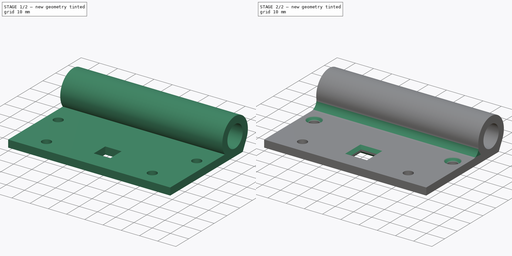
[diagram: build sequence overview — one tinted view per stage of 2, left to right]
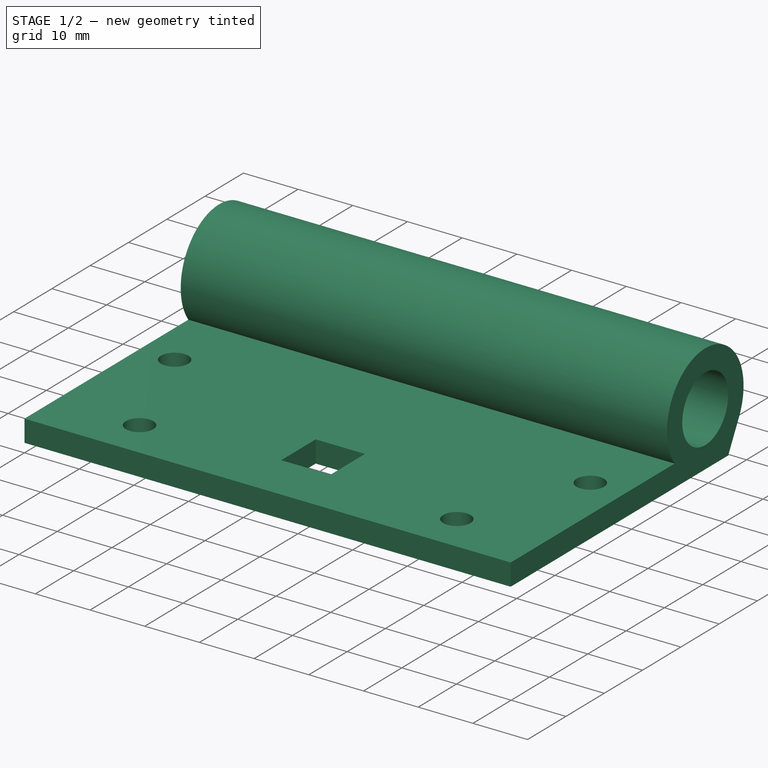
[diagram: stage 1 of 2 — iso view after this stage's code; geometry added in this stage tinted green]
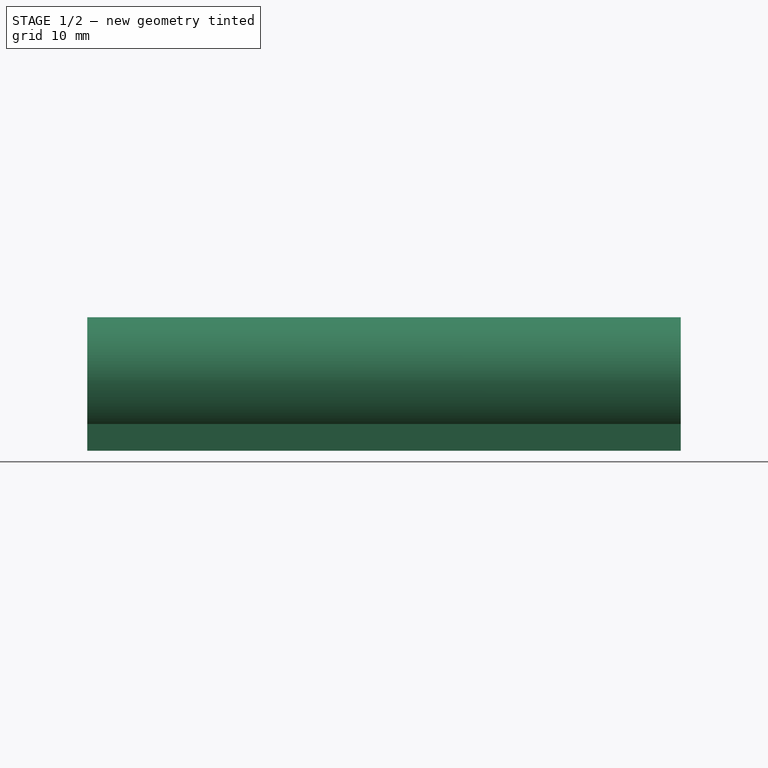
[diagram: stage 1 of 2 — front view after this stage's code; geometry added in this stage tinted green]
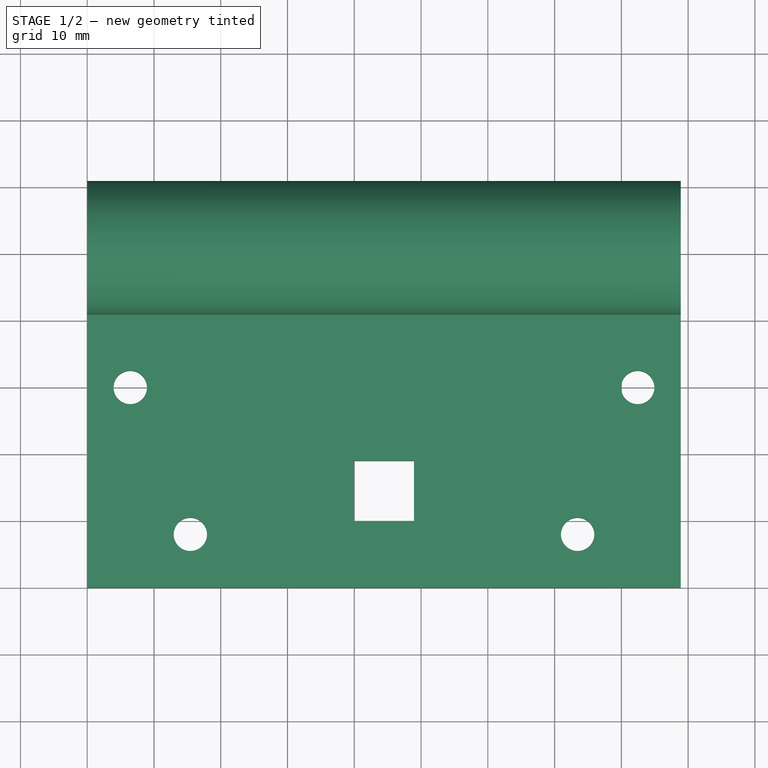
[diagram: stage 1 of 2 — top view after this stage's code; geometry added in this stage tinted green]
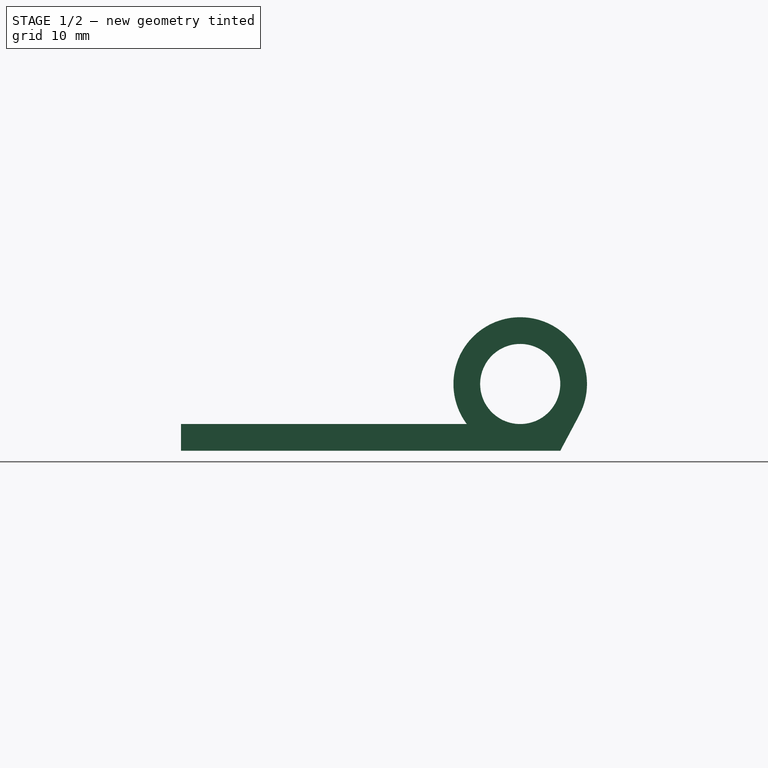
[diagram: stage 1 of 2 — right view after this stage's code; geometry added in this stage tinted green]
FCSTD DOCUMENT  (FreeCAD 0.17R11141 (Git))
Label: roller-holder
License: All rights reserved
LicenseURL: http://en.wikipedia.org/wiki/All_rights_reserved
objects: Sketcher::SketchObject×2, PartDesign::Pad×2, PartDesign::Fillet×1, PartDesign::Chamfer×1, PartDesign::Body×1
note: 9 computed .brp shape members not serialized (recipe doc carries the construction recipe); baked Part::Feature solids carry a one-line shape summary decoded from their .brp

FEATURE [Sketcher::SketchObject] Sketch
  MapMode = 5
  Support = -> [XY_Plane]
  sketch-geometry (25):
    g0: LineSegment StartX=0 StartY=0 StartZ=0 EndX=88.9 EndY=0 EndZ=0
    g1: LineSegment StartX=88.9 StartY=0 StartZ=0 EndX=88.9 EndY=50.8 EndZ=0
    g2: LineSegment StartX=88.9 StartY=50.8 StartZ=0 EndX=0 EndY=50.8 EndZ=0
    g3: LineSegment StartX=0 StartY=50.8 StartZ=0 EndX=0 EndY=0 EndZ=0
    g4: LineSegment [constr] StartX=0 StartY=0 StartZ=0 EndX=17.95 EndY=50.8 EndZ=0
    g5: LineSegment [constr] StartX=17.95 StartY=50.8 StartZ=0 EndX=17.95 EndY=0 EndZ=0
    g6: LineSegment [constr] StartX=17.95 StartY=0 StartZ=0 EndX=70.95 EndY=50.8 EndZ=0
    g7: LineSegment [constr] StartX=70.95 StartY=50.8 StartZ=0 EndX=70.95 EndY=0 EndZ=0
    g8: LineSegment [constr] StartX=70.95 StartY=0 StartZ=0 EndX=88.9 EndY=50.8 EndZ=0
    g9: LineSegment StartX=39.95 StartY=10 StartZ=0 EndX=48.95 EndY=10 EndZ=0
    g10: LineSegment StartX=48.95 StartY=10 StartZ=0 EndX=48.95 EndY=19 EndZ=0
    g11: LineSegment StartX=48.95 StartY=19 StartZ=0 EndX=39.95 EndY=19 EndZ=0
    g12: LineSegment StartX=39.95 StartY=19 StartZ=0 EndX=39.95 EndY=10 EndZ=0
    g13: LineSegment [constr] StartX=17.95 StartY=0 StartZ=0 EndX=39.95 EndY=10 EndZ=0
    g14: LineSegment [constr] StartX=48.95 StartY=10 StartZ=0 EndX=70.95 EndY=0 EndZ=0
    g15: LineSegment [constr] StartX=0 StartY=0 StartZ=0 EndX=15.45 EndY=8 EndZ=0
    g16: LineSegment [constr] StartX=15.45 StartY=8 StartZ=0 EndX=73.45 EndY=8 EndZ=0
    g17: LineSegment [constr] StartX=73.45 StartY=8 StartZ=0 EndX=88.9 EndY=0 EndZ=0
    g18: Circle CenterX=15.45 CenterY=8 CenterZ=0 NormalX=0 NormalY=0 NormalZ=1 Radius=2.5
    g19: Circle CenterX=73.45 CenterY=8 CenterZ=0 NormalX=0 NormalY=0 NormalZ=1 Radius=2.5
    g20: LineSegment [constr] StartX=0 StartY=0 StartZ=0 EndX=6.45 EndY=30 EndZ=0
    g21: LineSegment [constr] StartX=6.45 StartY=30 StartZ=0 EndX=82.45 EndY=30 EndZ=0
    g22: LineSegment [constr] StartX=82.45 StartY=30 StartZ=0 EndX=88.9 EndY=0 EndZ=0
    g23: Circle CenterX=6.45 CenterY=30 CenterZ=0 NormalX=0 NormalY=0 NormalZ=1 Radius=2.5
    g24: Circle CenterX=82.45 CenterY=30 CenterZ=0 NormalX=0 NormalY=0 NormalZ=1 Radius=2.5
  constraints (65):
    c: Coincident(g0,g1)
    c: Coincident(g1,g2)
    c: Coincident(g2,g3)
    c: Coincident(g3,g0)
    c: Horizontal(g0)
    c: Horizontal(g2)
    c: Vertical(g1)
    c: Vertical(g3)
    c: Coincident(g0,g-1)
    c: DistanceX(g0,g0) = 88.9
    c: DistanceY(g3,g3) = 50.8
    c: Coincident(g-1,g4)
    c: PointOnObject(g4,g2)
    c: Coincident(g4,g5)
    c: PointOnObject(g5,g0)
    c: Vertical(g5)
    c: Coincident(g5,g6)
    c: PointOnObject(g6,g2)
    c: Coincident(g6,g7)
    c: PointOnObject(g7,g0)
    c: Vertical(g7)
    c: Coincident(g7,g8)
    c: Coincident(g8,g1)
    c: Equal(g8,g4)
    c: DistanceX(g4,g6) = 53
    c: Coincident(g9,g10)
    c: Coincident(g10,g11)
    c: Coincident(g11,g12)
    c: Coincident(g12,g9)
    c: Horizontal(g9)
    c: Horizontal(g11)
    c: Vertical(g10)
    c: Vertical(g12)
    c: Coincident(g5,g13)
    c: Coincident(g13,g9)
    c: Coincident(g9,g14)
    c: Coincident(g14,g7)
    c: Coincident(g-1,g15)
    c: Coincident(g15,g16)
    c: Horizontal(g16)
    c: Coincident(g16,g17)
    c: Coincident(g17,g0)
    c: Equal(g17,g15)
    c: Equal(g13,g14)
    c: Equal(g9,g10)
    c: Coincident(g18,g15)
    c: Coincident(g19,g16)
    c: Tangent(g19,g7)
    c: DistanceY(g5,g15) = 8
    c: Equal(g18,g19)
    c: Radius(g19) = 2.5
    c: DistanceX(g11,g11) = 9
    c: DistanceY(g5,g9) = 10
    c: Coincident(g-1,g20)
    c: Coincident(g20,g21)
    c: Horizontal(g21)
    c: Coincident(g21,g22)
    c: Coincident(g22,g0)
    c: Equal(g22,g20)
    c: Coincident(g23,g20)
    c: Coincident(g24,g21)
    c: Equal(g23,g24)
    c: Radius(g23) = 2.5
    c: DistanceX(g21,g21) = 76
    c: DistanceY(g20) = 30
FEATURE [PartDesign::Pad] Pad
  Length = 4
  Length2 = 100
  Profile = -> Sketch
  Type = 0
FEATURE [Sketcher::SketchObject] Sketch001
  ExternalGeometry = -> [Pad]
  MapMode = 5
  Placement = pos=(0,0,0) rot=(0.57735,-0.57735,-0.57735;2.0944rad)
  Support = -> [Pad]
  sketch-geometry (5):
    g0: Circle CenterX=-50.8 CenterY=10 CenterZ=0 NormalX=0 NormalY=0 NormalZ=1 Radius=6
    g1: Circle [constr] CenterX=-50.8 CenterY=10 CenterZ=0 NormalX=0 NormalY=0 NormalZ=1 Radius=10
    g2: LineSegment StartX=-50.8 StartY=0 StartZ=0 EndX=-56.8 EndY=0 EndZ=0
    g3: LineSegment StartX=-56.8 StartY=0 StartZ=0 EndX=-59.6235 EndY=5.29412 EndZ=0
    g4: ArcOfCircle CenterX=-50.8 CenterY=10 CenterZ=0 NormalX=0 NormalY=0 NormalZ=1 Radius=10 StartAngle=4.71239 EndAngle=9.91473
  constraints (14):
    c: Radius(g0) = 6
    c: DistanceY(g0) = 10
    c: Coincident(g1,g0)
    c: Tangent(g1,g-1)
    c: PointOnObject(g-3,g1)
    c: Coincident(g-3,g2)
    c: PointOnObject(g2,g-1)
    c: Coincident(g2,g3)
    c: PointOnObject(g3,g1)
    c: Tangent(g3,g1)
    c: DistanceX(g2,g2) = 6
    c: Coincident(g4,g0)
    c: Coincident(g4,g3)
    c: Coincident(g4,g2)
FEATURE [PartDesign::Pad] Pad001
  BaseFeature = -> Pad
  Length = 10
  Length2 = 100
  Profile = -> Sketch001
  Reversed = true
  Type = 3
  UpToFace = -> Pad [Face2]
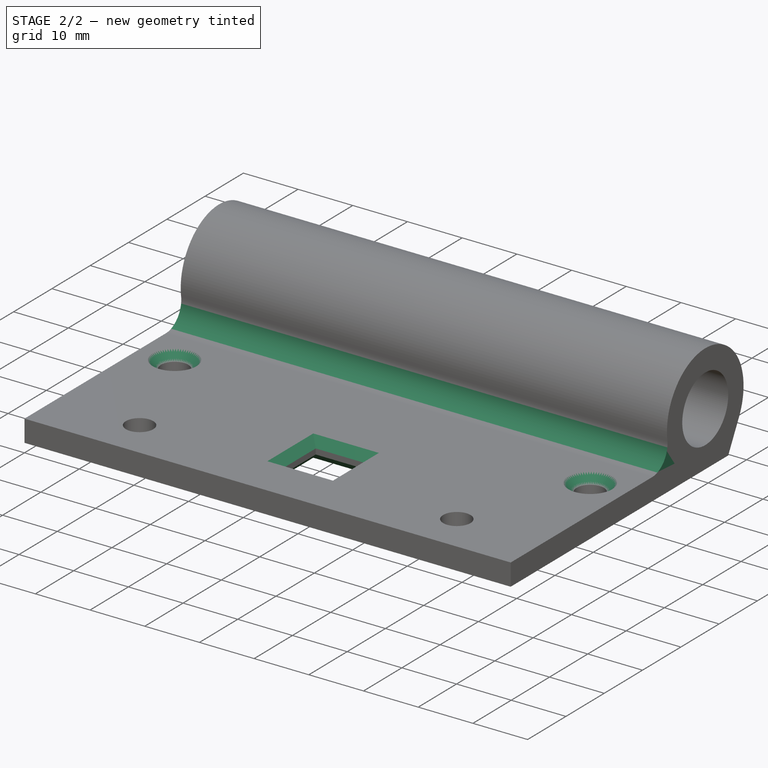
[diagram: stage 2 of 2 — iso view after this stage's code; geometry added in this stage tinted green]
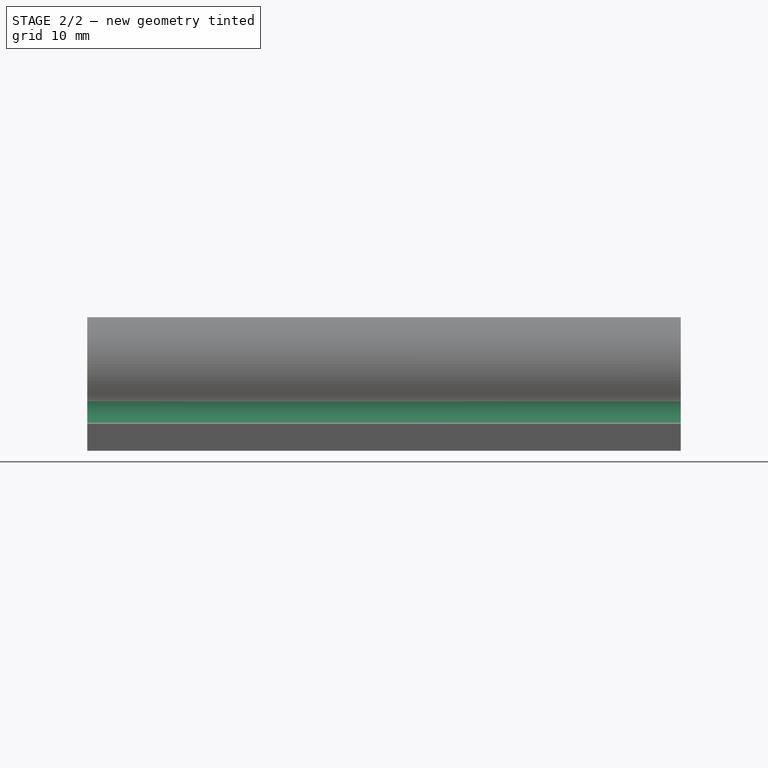
[diagram: stage 2 of 2 — front view after this stage's code; geometry added in this stage tinted green]
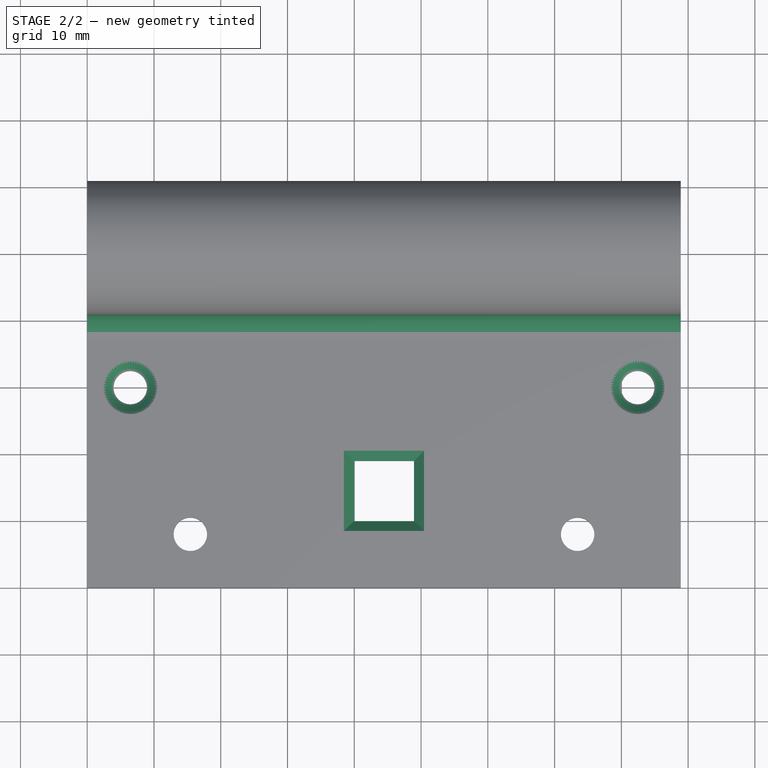
[diagram: stage 2 of 2 — top view after this stage's code; geometry added in this stage tinted green]
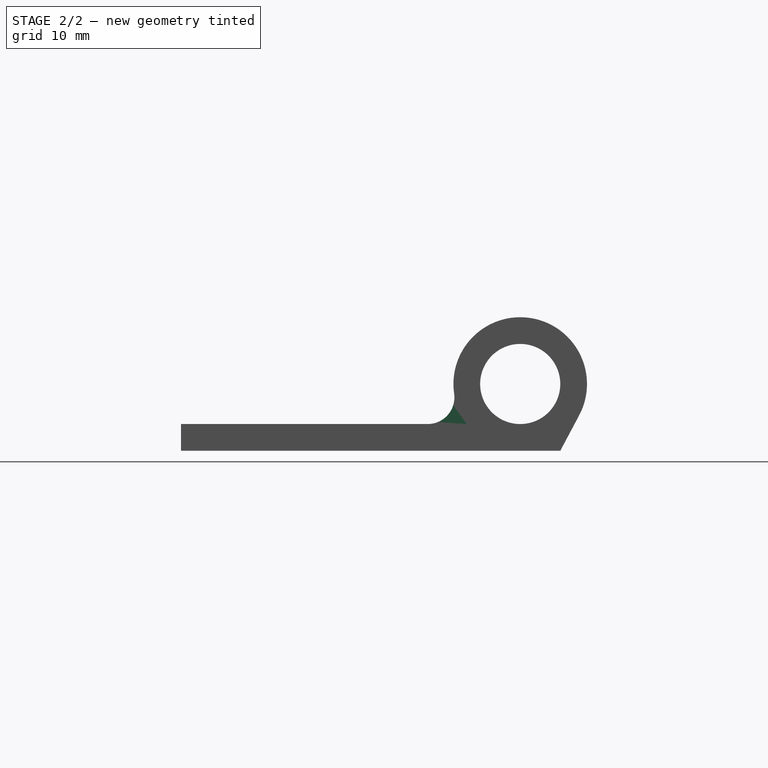
[diagram: stage 2 of 2 — right view after this stage's code; geometry added in this stage tinted green]
FEATURE [PartDesign::Fillet] Fillet
  Base = -> Pad001 [Edge20]
  BaseFeature = -> Pad001
  Radius = 4
FEATURE [PartDesign::Chamfer] Chamfer
  Base = -> Fillet [Edge11,Edge9,Edge32,Edge30,Edge35,Edge33,Edge34,Edge36,Edge13,Edge14,Edge16,Edge15]
  BaseFeature = -> Fillet
  Size = 1.5
FEATURE [PartDesign::Body] Body
  Group = -> [Sketch,Pad,Sketch001,Pad001,Fillet,Chamfer]
  Origin = -> BodyOrigin
  Tip = -> Chamfer
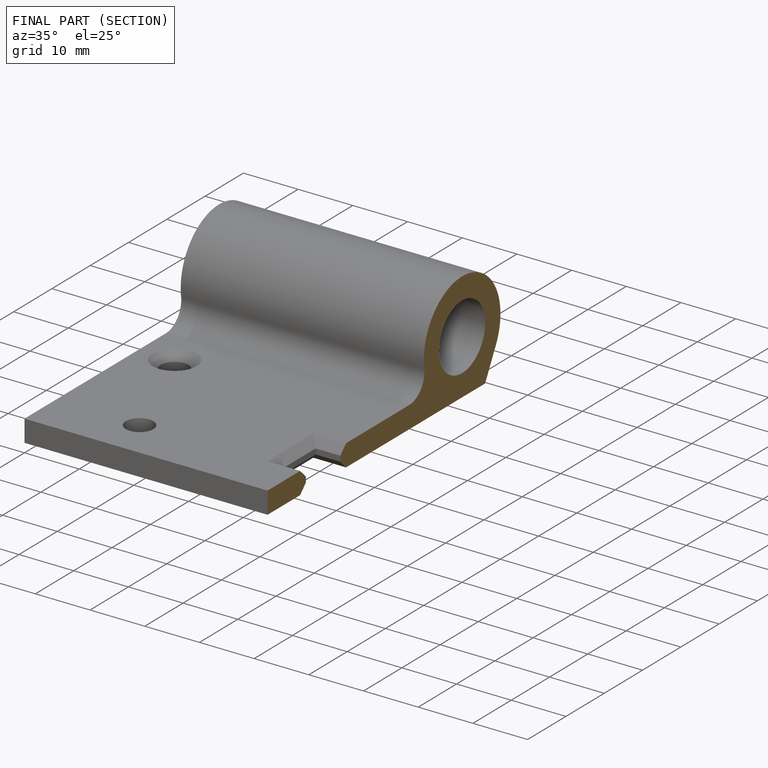
[diagram: finished part — half-section view (interior)]
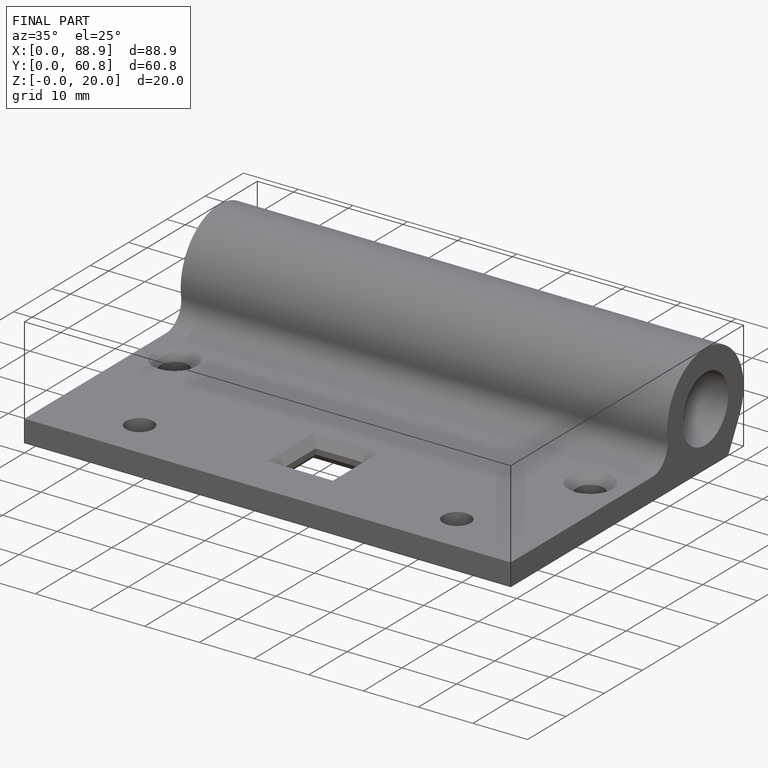
[diagram: finished part — iso view with bounding-box wireframe]
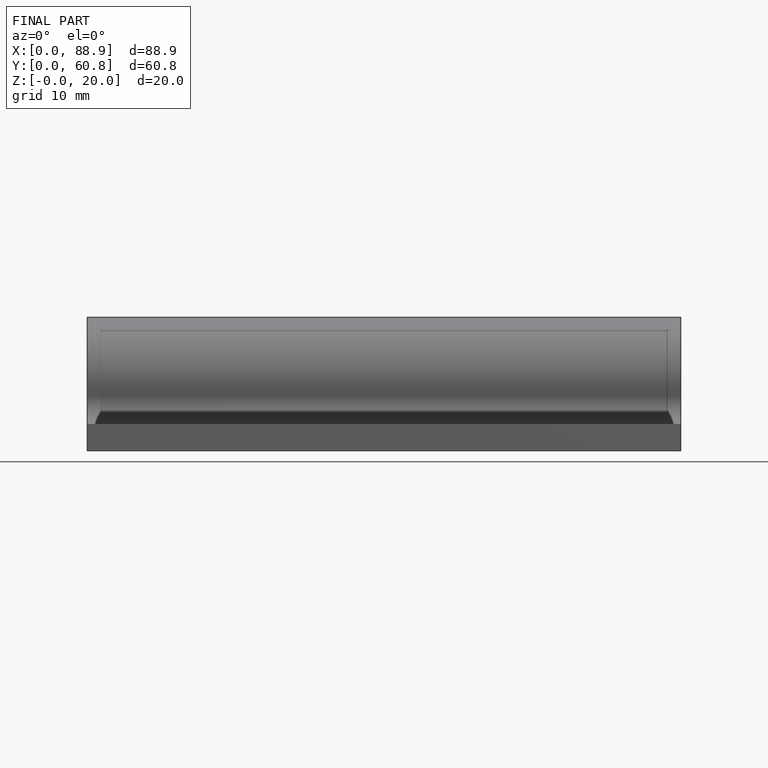
[diagram: finished part — front view with bounding-box wireframe]
